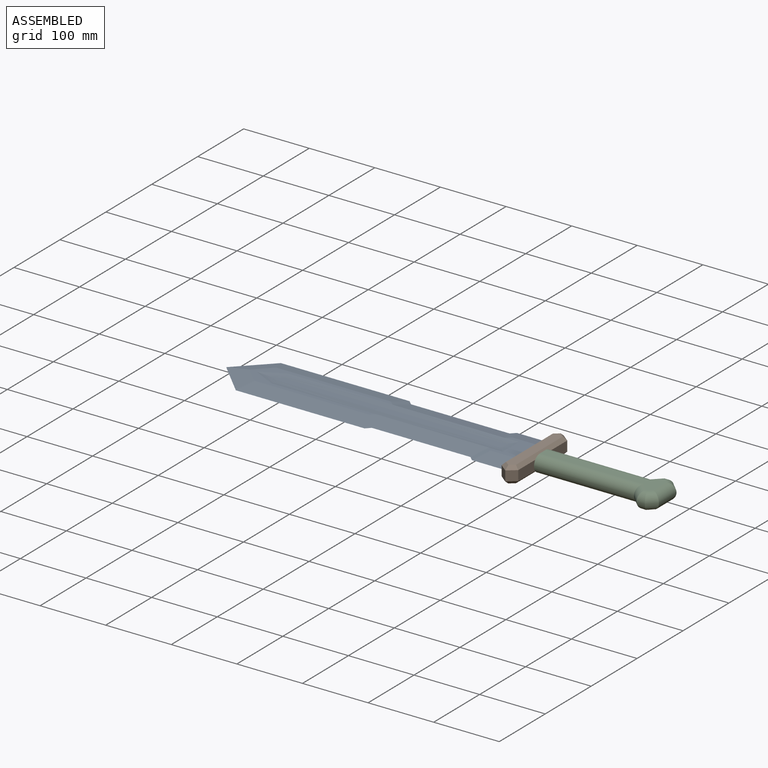
[diagram: assembled view]
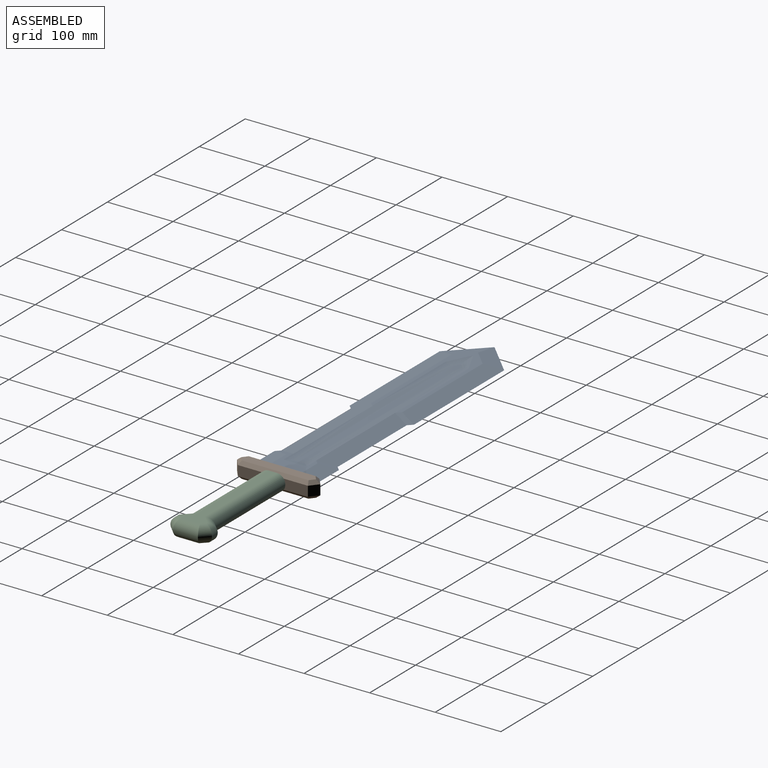
[diagram: assembled view, second angle]
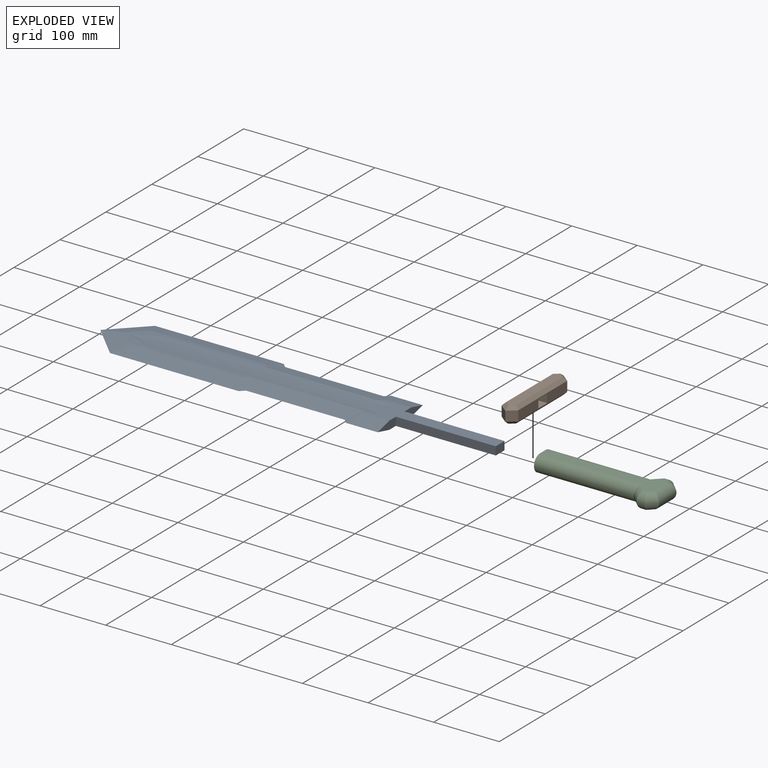
[diagram: exploded view]
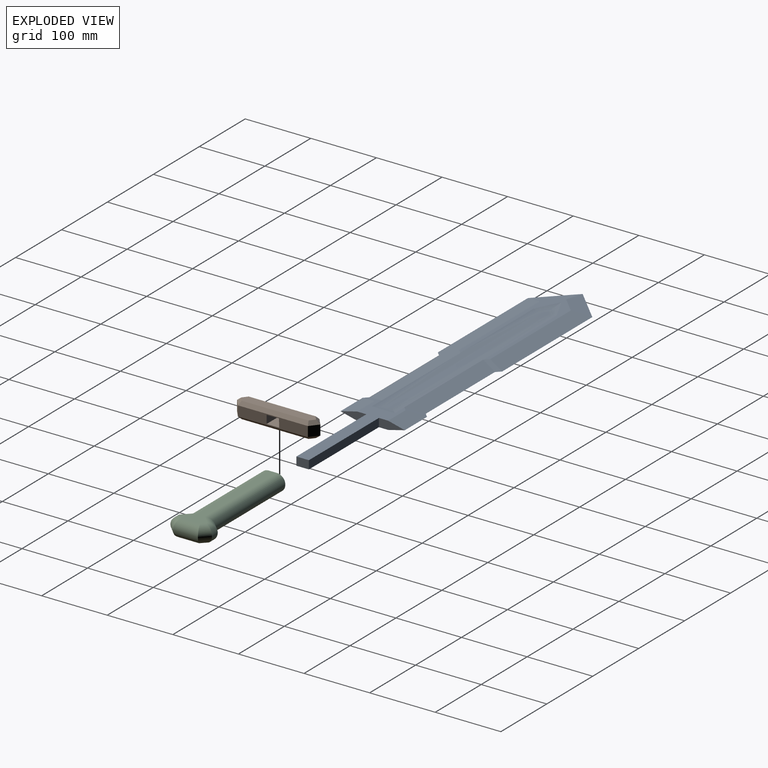
[diagram: exploded view, second angle]
ASSEMBLY  parts=3 mates=2
PART A: 45 faces, bbox 609.6x98.1x12.7 mm
  f0: plane 196.29x47.33mm, normal (0,0,1), area 4212.7mm2, adj f2,f3,f4,f5,f6,f23,f24,f33
  f1: plane 196.29x47.33mm, normal (0,0,-1), area 4212.7mm2, adj f2,f3,f4,f5,f6,f11,f12,f13
  f2: plane 39.54x12.7mm, normal (1,0,0), area 340.9mm2, adj f0,f1,f3,f11,f23
  f3: plane 152.4x12.7mm, normal (0,-1,0), area 1935.5mm2, adj f0,f1,f2,f4
  f4: plane 19.05x12.7mm, normal (1,0,0), area 241.9mm2, adj f0,f1,f3,f5
  f5: plane 152.4x12.7mm, normal (0,1,0), area 1935.5mm2, adj f0,f1,f4,f6
  f6: plane 39.54x12.7mm, normal (1,0,0), area 340.9mm2, adj f0,f1,f5,f13,f34
  f7: plane 204.98x47.33mm, normal (0,0,1), area 2874mm2, adj f26,f27,f28,f29,f30,f31,f40,f41
  f8: plane 204.98x47.33mm, normal (0,0,-1), area 2874mm2, adj f16,f18,f19,f20,f21,f22,f35,f36
  f9: plane 351.26x12.62mm, normal (0,0,1), area 4353.7mm2, adj f40,f41,f42,f43,f44
  f10: plane 351.26x12.62mm, normal (0,0,-1), area 4353.7mm2, adj f35,f36,f37,f38,f39
  f11: plane 48.32x25.4mm, normal (0,-0.24,-0.97), area 1127.4mm2, adj f1,f2,f12,f23
  f12: plane 31.71x17.07mm, normal (-0.17,-0.17,-0.97), area 242.1mm2, adj f1,f11,f14,f24,f37
  f13: plane 48.32x25.4mm, normal (0,0.24,-0.97), area 1127.4mm2, adj f1,f6,f15,f34
  f14: plane 171.31x25.16mm, normal (0,-0.24,-0.97), area 4173mm2, adj f12,f16,f25,f37
  f15: plane 31.73x17.06mm, normal (-0.17,0.17,-0.97), area 242.2mm2, adj f1,f13,f17,f33,f38
  f16: plane 31.71x17.07mm, normal (0.17,-0.17,-0.97), area 242.1mm2, adj f8,f14,f18,f26,f37
  f17: plane 171.33x25.19mm, normal (0,0.24,-0.97), area 4177.4mm2, adj f15,f19,f32,f38
  f18: plane 196.26x25.4mm, normal (0,-0.24,-0.97), area 4863mm2, adj f8,f16,f20,f27
  f19: plane 31.73x17.06mm, normal (0.17,0.17,-0.97), area 242.2mm2, adj f8,f17,f21,f31,f38
  f20: plane 59.59x49.07mm, normal (-0.17,-0.17,-0.97), area 1346.5mm2, adj f8,f18,f22,f28
  f21: plane 196.26x25.4mm, normal (0,0.24,-0.97), area 4863mm2, adj f8,f19,f22,f30
  f22: plane 59.59x49.07mm, normal (-0.17,0.17,-0.97), area 1346.5mm2, adj f8,f20,f21,f29
  f23: plane 48.32x25.4mm, normal (0,-0.24,0.97), area 1127.4mm2, adj f0,f2,f11,f24
  f24: plane 31.71x17.07mm, normal (-0.17,-0.17,0.97), area 242.1mm2, adj f0,f12,f23,f25,f42
  f25: plane 171.31x25.16mm, normal (0,-0.24,0.97), area 4173mm2, adj f14,f24,f26,f42
  f26: plane 31.71x17.07mm, normal (0.17,-0.17,0.97), area 242.1mm2, adj f7,f16,f25,f27,f42
  f27: plane 196.26x25.4mm, normal (0,-0.24,0.97), area 4863mm2, adj f7,f18,f26,f28
  f28: plane 59.59x49.07mm, normal (-0.17,-0.17,0.97), area 1346.5mm2, adj f7,f20,f27,f29
  f29: plane 59.59x49.07mm, normal (-0.17,0.17,0.97), area 1346.5mm2, adj f7,f22,f28,f30
  f30: plane 196.26x25.4mm, normal (0,0.24,0.97), area 4863mm2, adj f7,f21,f29,f31
  f31: plane 31.73x17.06mm, normal (0.17,0.17,0.97), area 242.2mm2, adj f7,f19,f30,f32,f43
  f32: plane 171.33x25.19mm, normal (0,0.24,0.97), area 4177.4mm2, adj f17,f31,f33,f43
  f33: plane 31.73x17.06mm, normal (-0.17,0.17,0.97), area 242.2mm2, adj f0,f15,f32,f34,f43
  f34: plane 48.32x25.4mm, normal (0,0.24,0.97), area 1127.4mm2, adj f0,f6,f13,f33
  f35: cylinder r=50.8mm len=40.25mm, axis (0.89,-0.45,0), area 304.8mm2, adj f8,f10,f36,f37
  f36: cylinder r=50.8mm len=40.25mm, axis (0.89,0.45,0), area 304.8mm2, adj f8,f10,f35,f38
  f37: cylinder r=50.8mm len=352.6mm, axis (-1,0,0), area 3887.9mm2, adj f1,f8,f10,f12,f14,f16,f35,f39
  f38: cylinder r=50.8mm len=352.6mm, axis (1,0,0), area 3892.9mm2, adj f1,f8,f10,f15,f17,f19,f36,f39
  f39: cylinder r=50.8mm len=35.2mm, axis (0,1,0), area 272.7mm2, adj f1,f10,f37,f38
  f40: cylinder r=50.8mm len=40.25mm, axis (-0.89,0.45,0), area 304.8mm2, adj f7,f9,f41,f42
  f41: cylinder r=50.8mm len=40.25mm, axis (-0.89,-0.45,0), area 304.8mm2, adj f7,f9,f40,f43
  f42: cylinder r=50.8mm len=352.6mm, axis (1,0,0), area 3887.9mm2, adj f0,f7,f9,f24,f25,f26,f40,f44
  f43: cylinder r=50.8mm len=352.6mm, axis (-1,0,0), area 3892.9mm2, adj f0,f7,f9,f31,f32,f33,f41,f44
  f44: cylinder r=50.8mm len=35.2mm, axis (0,1,0), area 272.7mm2, adj f0,f9,f42,f43
PART B: 30 faces, bbox 25.4x127x25.4 mm
  f0: plane 73.91x15.24mm, normal (-1,0,0), area 884.4mm2, adj f2,f3,f10,f11,f12,f13,f15,f23
  f1: plane 106.68x15.24mm, normal (1,0,0), area 1383.9mm2, adj f5,f6,f10,f11,f12,f13,f20,f28
  f2: plane 16.39x15.24mm, normal (-1,-0.01,0), area 249.7mm2, adj f0,f7,f17,f25
  f3: plane 16.39x15.24mm, normal (-1,0.01,0), area 249.7mm2, adj f0,f4,f14,f22
  f4: plane 15.24x12.7mm, normal (-0.62,-0.78,0), area 247.9mm2, adj f3,f5,f16,f24
  f5: plane 15.24x12.7mm, normal (0.62,-0.78,0), area 247.9mm2, adj f1,f4,f18,f26
  f6: plane 15.24x12.7mm, normal (0.62,0.78,0), area 247.9mm2, adj f1,f7,f21,f29
  f7: plane 15.24x12.7mm, normal (-0.62,0.78,0), area 247.9mm2, adj f2,f6,f19,f27
  f8: plane 113.99x15.22mm, normal (0,0,1), area 1633.8mm2, adj f22,f23,f24,f25,f26,f27,f28,f29
  f9: plane 113.99x15.22mm, normal (0,0,-1), area 1633.8mm2, adj f14,f15,f16,f17,f18,f19,f20,f21
  f10: plane 25.28x19.05mm, normal (0,0,1), area 481.7mm2, adj f0,f1,f11,f13
  f11: plane 25.28x12.7mm, normal (0,1,0), area 321.1mm2, adj f0,f1,f10,f12
  f12: plane 25.28x19.05mm, normal (0,0,-1), area 481.7mm2, adj f0,f1,f11,f13
  f13: plane 25.28x12.7mm, normal (0,-1,0), area 321.1mm2, adj f0,f1,f10,f12
  f14: plane 16.39x5.2mm, normal (-0.71,0.01,-0.71), area 108.9mm2, adj f3,f9,f15,f16
  f15: plane 73.94x5.08mm, normal (-0.71,0,-0.71), area 531.1mm2, adj f0,f9,f14,f17
  f16: plane 12.7x12.59mm, normal (-0.44,-0.55,-0.71), area 93.4mm2, adj f4,f9,f14,f18
  f17: plane 16.39x5.2mm, normal (-0.71,-0.01,-0.71), area 108.9mm2, adj f2,f9,f15,f19
  f18: plane 12.7x12.6mm, normal (0.44,-0.55,-0.71), area 93.5mm2, adj f5,f9,f16,f20
  f19: plane 12.7x12.59mm, normal (-0.44,0.55,-0.71), area 93.4mm2, adj f7,f9,f17,f21
  f20: plane 106.68x5.08mm, normal (0.71,0,-0.71), area 748.9mm2, adj f1,f9,f18,f21
  f21: plane 12.7x12.6mm, normal (0.44,0.55,-0.71), area 93.5mm2, adj f6,f9,f19,f20
  f22: plane 16.39x5.2mm, normal (-0.71,0.01,0.71), area 108.9mm2, adj f3,f8,f23,f24
  f23: plane 73.94x5.08mm, normal (-0.71,0,0.71), area 531.1mm2, adj f0,f8,f22,f25
  f24: plane 12.7x12.59mm, normal (-0.44,-0.55,0.71), area 93.4mm2, adj f4,f8,f22,f26
  f25: plane 16.39x5.2mm, normal (-0.71,-0.01,0.71), area 108.9mm2, adj f2,f8,f23,f27
  f26: plane 12.7x12.6mm, normal (0.44,-0.55,0.71), area 93.5mm2, adj f5,f8,f24,f28
  f27: plane 12.7x12.59mm, normal (-0.44,0.55,0.71), area 93.4mm2, adj f7,f8,f25,f29
  f28: plane 106.68x5.08mm, normal (0.71,0,0.71), area 748.9mm2, adj f1,f8,f26,f29
  f29: plane 12.7x12.6mm, normal (0.44,0.55,0.71), area 93.5mm2, adj f6,f8,f27,f28
PART C: 17 faces, bbox 190.5x63.3x25.4 mm
  f0: plane 38.1x25.4mm, normal (-1,0,0), area 587.4mm2, adj f1,f2,f3,f6,f12,f13,f14,f15
  f1: plane 177.8x37.92mm, normal (0,0,1), area 2579.7mm2, adj f0,f3,f4,f5,f6,f7,f8,f9
  f2: plane 177.8x37.92mm, normal (0,0,-1), area 2579.7mm2, adj f0,f3,f4,f5,f6,f7,f8,f9
  f3: cylinder r=12.7mm len=157.63mm, axis (-1,0,0), area 6156.4mm2, adj f0,f1,f2,f4
  f4: cylinder r=12.7mm len=25.4mm, axis (-0.71,0.7,0), area 714mm2, adj f1,f2,f3,f5
  f5: cylinder r=12.7mm len=25.4mm, axis (-1,0,0), area 355.3mm2, adj f1,f2,f4,f7
  f6: cylinder r=12.7mm len=157.63mm, axis (1,0,0), area 6156.4mm2, adj f0,f1,f2,f8
  f7: cylinder r=12.7mm len=25.4mm, axis (-0.71,-0.7,0), area 558.9mm2, adj f1,f2,f5,f9
  f8: cylinder r=12.7mm len=25.4mm, axis (0.71,0.7,0), area 714mm2, adj f1,f2,f6,f10
  f9: cylinder r=12.7mm len=38.32mm, axis (0,-1,0), area 1373.3mm2, adj f1,f2,f7,f11
  f10: cylinder r=12.7mm len=25.4mm, axis (1,0,0), area 355.3mm2, adj f1,f2,f8,f11
  f11: cylinder r=12.7mm len=25.4mm, axis (0.71,-0.7,0), area 558.9mm2, adj f1,f2,f9,f10
  f12: plane 127x19.05mm, normal (0,0,-1), area 2419.3mm2, adj f0,f13,f15,f16
  f13: plane 127x12.7mm, normal (0,-1,0), area 1612.9mm2, adj f0,f12,f14,f16
  f14: plane 127x19.05mm, normal (0,0,1), area 2419.3mm2, adj f0,f13,f15,f16
  f15: plane 127x12.7mm, normal (0,1,0), area 1612.9mm2, adj f0,f12,f14,f16
  f16: plane 19.05x12.7mm, normal (-1,0,0), area 241.9mm2, adj f12,f13,f14,f15
PLACE A t=(-223.3,-95.36,132.62)mm
PLACE B t=(-63.34,-87.44,119.92)mm
PLACE C t=(-58.03,-77.95,119.92)mm
MATE fastened C.f16 <-> A.f4  axis (-1,0,0) through (23.97,-29.73,132.62)mm
MATE fastened C.f12 <-> B.f12  axis (0,0,1) through (-103.03,-39.25,138.97)mm
